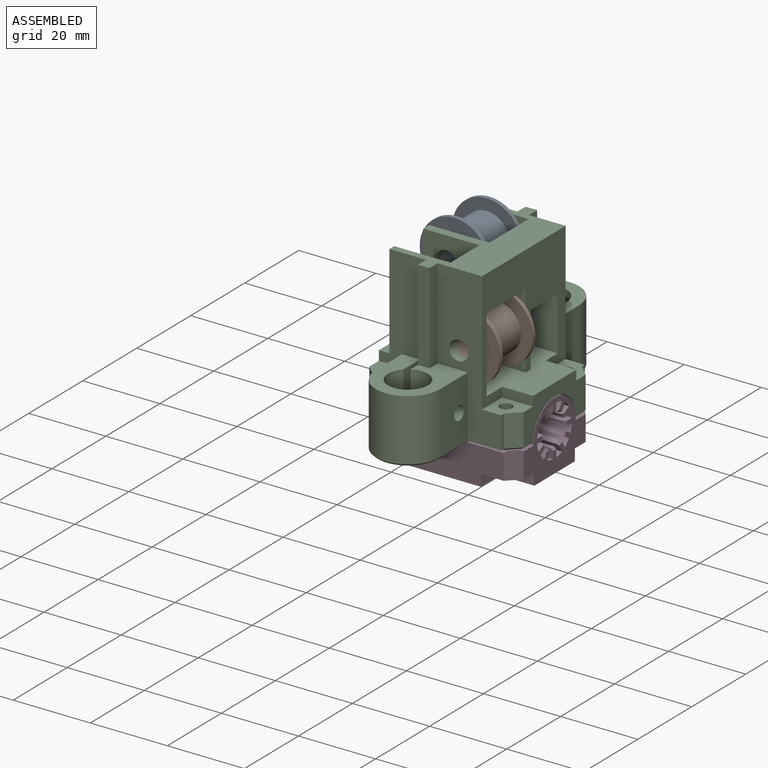
[diagram: assembled view]
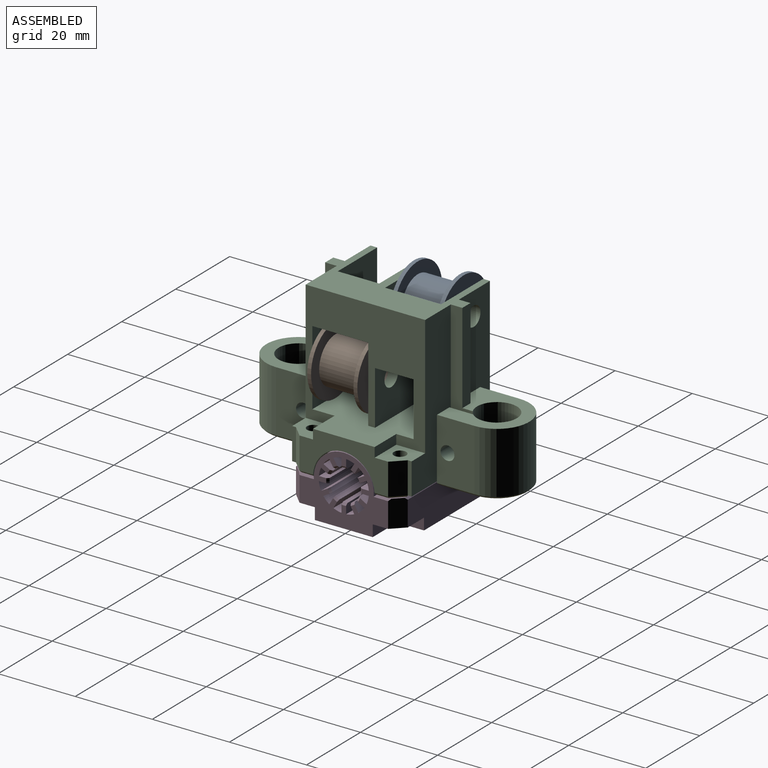
[diagram: assembled view, second angle]
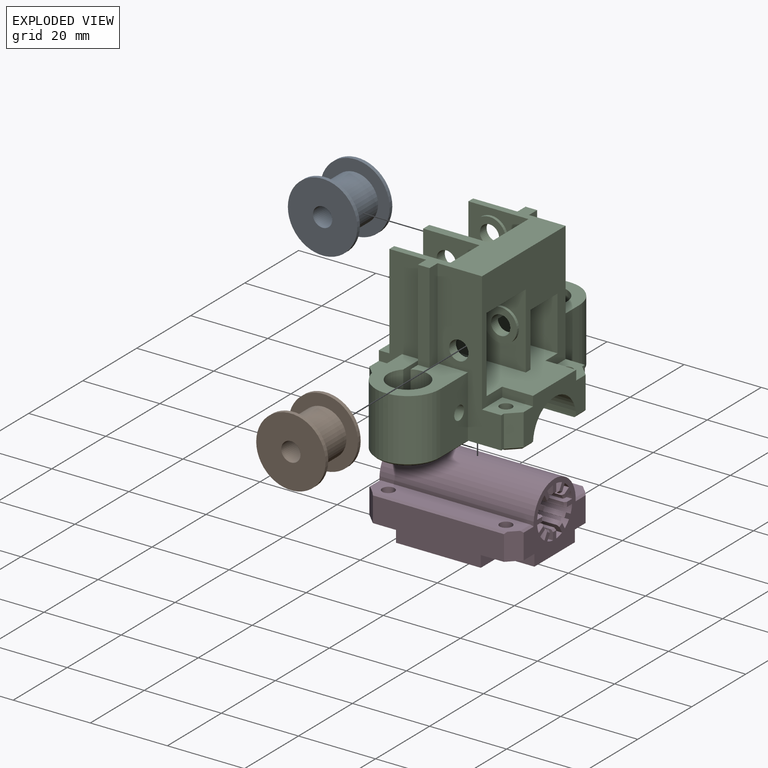
[diagram: exploded view]
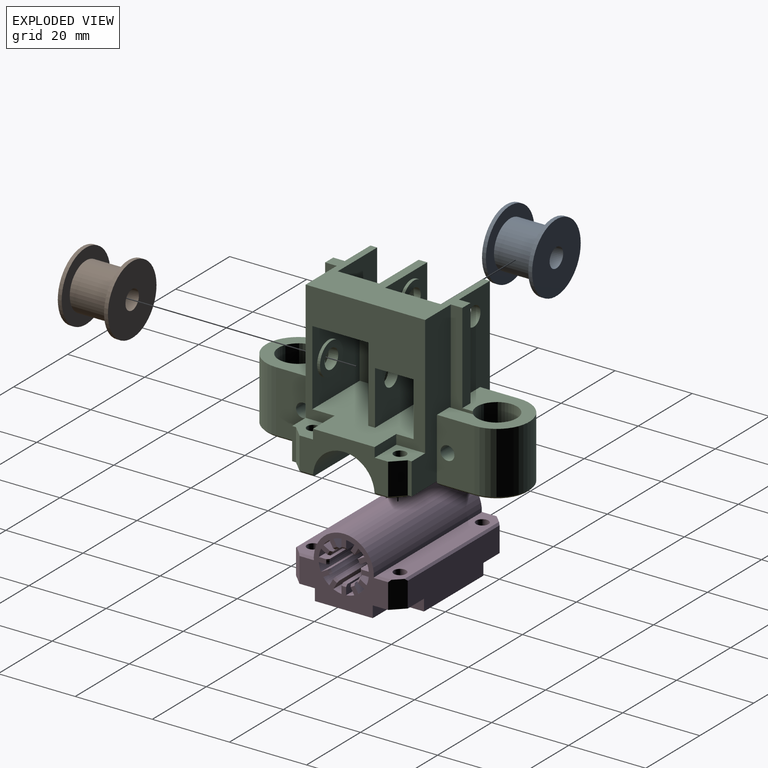
[diagram: exploded view, second angle]
ASSEMBLY  parts=4 mates=3
PART A: 8 faces, bbox 18x18x13 mm
  f0: cylinder r=9mm len=18mm, axis (0,0,-1), area 56.5mm2, adj f1,f2
  f1: plane 18x18mm, normal (0,0,1), area 141.4mm2, adj f0,f3
  f2: plane 18x18mm, normal (0,0,-1), area 234.8mm2, adj f0,f7
  f3: cylinder r=6mm len=12mm, axis (0,0,-1), area 414.7mm2, adj f1,f6
  f4: cylinder r=9mm len=18mm, axis (0,0,-1), area 56.5mm2, adj f5,f6
  f5: plane 18x18mm, normal (0,0,1), area 234.8mm2, adj f4,f7
  f6: plane 18x18mm, normal (0,0,-1), area 141.4mm2, adj f3,f4
  f7: cylinder r=2.5mm len=13mm, axis (0,0,1), area 204.2mm2, adj f2,f5
PART B: same geometry as A
PART C: 125 faces, bbox 40x68.2x40 mm
  f0: cone r=1.6mm half-angle=45deg, axis (0,0,-1), area 8.2mm2, adj f26,f53
  f1: cone r=1.6mm half-angle=45deg, axis (0,0,-1), area 8.2mm2, adj f54,f110
  f2: cone r=1.6mm half-angle=45deg, axis (0,0,-1), area 8.2mm2, adj f52,f110
  f3: cone r=1.6mm half-angle=45deg, axis (0,0,-1), area 8.2mm2, adj f26,f51
  f4: plane 11.74x0.5mm, normal (-0.71,0,-0.71), area 8.1mm2, adj f5,f46,f58,f75,f110
  f5: cone r=7.85mm half-angle=45deg, axis (0,0,1), area 18mm2, adj f4,f6,f60,f110
  f6: plane 9.74x0.5mm, normal (0.71,0,-0.71), area 6.7mm2, adj f5,f59,f73,f110
  f7: plane 9.75x0.5mm, normal (-0.71,0,-0.71), area 6.7mm2, adj f26,f55,f83,f115
  f8: plane 6.19x0.51mm, normal (0.71,0,-0.71), area 4.1mm2, adj f9,f26,f42,f83
  f9: cone r=5.17mm half-angle=45deg, axis (0,0,-1), area 22.6mm2, adj f8,f26,f50,f118
  f10: plane 3.52x0.5mm, normal (0.71,0,-0.71), area 2.4mm2, adj f21,f26,f48,f112
  f11: plane 3.52x0.5mm, normal (-0.71,0,-0.71), area 2.4mm2, adj f26,f43,f48,f116
  f12: plane 8x7.5mm, normal (0,0,1), area 44.5mm2, adj f19,f37,f43,f51,f64,f85,f108
  f13: plane 18.6x16.7mm, normal (0,0,1), area 177.5mm2, adj f15,f42,f50,f55,f56,f57,f84,f89
  f14: plane 6.18x0.51mm, normal (-0.71,0,-0.71), area 4.1mm2, adj f45,f73,f110,f111
  f15: plane 39.5x5.72mm, normal (-1,0,0), area 151.8mm2, adj f13,f50,f63,f92,f103,f108,f118
  f16: plane 10.75x9.25mm, normal (-1,0,0), area 99.4mm2, adj f61,f63,f67,f82
  f17: plane 15x0.5mm, normal (0,0.71,-0.71), area 10.4mm2, adj f27,f78,f110,f119
  f18: plane 10x8.4mm, normal (0,0,-1), area 84mm2, adj f22,f62,f65,f80
  f19: plane 8.25x3mm, normal (-0.71,-0.71,0), area 35mm2, adj f12,f43,f85,f116
  f20: plane 14.75x10mm, normal (0,0,-1), area 147.5mm2, adj f22,f35,f64,f80
  f21: plane 23x10.75mm, normal (1,0,0), area 137.2mm2, adj f10,f23,f25,f28,f32,f36,f38,f39
  f22: plane 24x14mm, normal (0,-1,0), area 262.2mm2, adj f18,f20,f23,f35,f64,f65,f70,f71
  f23: plane 40x26.25mm, normal (0,0,1), area 749.8mm2, adj f21,f22,f29,f34,f36,f37,f39,f43
  f24: plane 8x7.5mm, normal (0,0,1), area 44.5mm2, adj f29,f41,f43,f52,f64,f76,f107
  f25: plane 8.25x3mm, normal (0.71,-0.71,0), area 35mm2, adj f21,f28,f88,f112
  f26: plane 39x25.6mm, normal (0,0,-1), area 354.1mm2, adj f0,f3,f7,f8,f9,f10,f11,f48
  f27: plane 7.21x0.5mm, normal (0.71,0,-0.71), area 4.6mm2, adj f17,f30,f78,f110,f111
  f28: plane 8x7.5mm, normal (0,0,1), area 44.5mm2, adj f21,f25,f36,f53,f65,f88,f89
  f29: plane 8x2.5mm, normal (0,1,0), area 20mm2, adj f23,f24,f43,f64
  f30: plane 39.5x5.71mm, normal (1,0,0), area 151.6mm2, adj f27,f47,f49,f63,f79,f91,f105
  f31: plane 10.75x6.5mm, normal (0,0,1), area 69.9mm2, adj f34,f64,f67,f82
  f32: plane 8.25x3mm, normal (0.71,0.71,0), area 35mm2, adj f21,f44,f77,f119
  f33: plane 14.75x14.5mm, normal (0,0,1), area 201.8mm2, adj f34,f35,f64,f68,f69,f70,f72,f81
  f34: plane 16.5x14.5mm, normal (1,0,0), area 232.5mm2, adj f23,f31,f33,f66,f69,f81,f82
  f35: plane 10x3mm, normal (1,0,0), area 30mm2, adj f20,f22,f33,f80
  f36: plane 8x2.5mm, normal (0,-1,0), area 20mm2, adj f21,f23,f28,f65
  f37: plane 8x2.5mm, normal (0,-1,0), area 20mm2, adj f12,f23,f43,f64
  f38: plane 3.52x0.5mm, normal (0.71,0,-0.71), area 2.4mm2, adj f21,f48,f110,f119
  f39: plane 8x2.5mm, normal (0,1,0), area 20mm2, adj f21,f23,f44,f65
  f40: plane 3.52x0.5mm, normal (-0.71,0,-0.71), area 2.4mm2, adj f43,f48,f110,f120
  f41: plane 8.25x3mm, normal (-0.71,0.71,0), area 35mm2, adj f24,f43,f76,f120
  f42: plane 16x6.18mm, normal (1,0,0), area 88.7mm2, adj f8,f13,f50,f84,f123
  f43: plane 23x10.75mm, normal (-1,0,0), area 137.2mm2, adj f11,f12,f19,f23,f24,f29,f37,f40
  f44: plane 8x7.5mm, normal (0,0,1), area 44.5mm2, adj f21,f32,f39,f54,f65,f77,f79
  f45: plane 16x6.17mm, normal (-1,0,0), area 88.6mm2, adj f14,f47,f49,f74,f122
  f46: plane 9.15x0.5mm, normal (0,0.71,-0.71), area 6.2mm2, adj f4,f75,f110,f120
  f47: plane 18.59x16.7mm, normal (0,0,1), area 177.4mm2, adj f30,f45,f49,f58,f59,f60,f74,f104
  f48: cylinder r=8mm len=40mm, axis (-1,0,0), area 1004.8mm2, adj f10,f11,f21,f26,f38,f40,f43,f110
  f49: cylinder r=5.17mm len=16mm, axis (0,0,-1), area 494.9mm2, adj f30,f45,f47,f111
  f50: cylinder r=5.17mm len=16mm, axis (0,0,-1), area 494.9mm2, adj f9,f13,f15,f42
  f51: cylinder r=1.6mm len=8.25mm, axis (0,0,1), area 82.9mm2, adj f3,f12
  f52: cylinder r=1.6mm len=8.25mm, axis (0,0,1), area 82.9mm2, adj f2,f24
  f53: cylinder r=1.6mm len=8.25mm, axis (0,0,1), area 82.9mm2, adj f0,f28
  f54: cylinder r=1.6mm len=8.25mm, axis (0,0,1), area 82.9mm2, adj f1,f44
  f55: plane 16x9.75mm, normal (-1,0,0), area 145.8mm2, adj f7,f13,f56,f84,f123
  f56: cylinder r=8.35mm len=16.7mm, axis (0,0,1), area 419.7mm2, adj f13,f55,f57,f115
  f57: plane 16x10.25mm, normal (1,0,0), area 153.8mm2, adj f13,f56,f89,f92,f114
  f58: plane 16x10.24mm, normal (-1,0,0), area 153.6mm2, adj f4,f47,f60,f91,f107
  f59: plane 16x9.74mm, normal (1,0,0), area 145.6mm2, adj f6,f47,f60,f74,f122
  f60: cylinder r=8.35mm len=16.7mm, axis (0,0,1), area 419.7mm2, adj f5,f47,f58,f59
  f61: plane 14.5x9.4mm, normal (0,0,-1), area 134.8mm2, adj f16,f62,f65,f69,f81,f82,f106
  f62: plane 14.75x14.5mm, normal (-1,0,0), area 205.6mm2, adj f18,f61,f63,f69,f71,f72,f81,f109
  f63: plane 37x24mm, normal (0,0,1), area 378.9mm2, adj f15,f16,f30,f62,f64,f65,f67,f69
  f64: plane 31.25x31mm, normal (-1,0,0), area 464.2mm2, adj f12,f20,f22,f23,f24,f29,f31,f33
  f65: plane 31.25x31mm, normal (1,0,0), area 506mm2, adj f18,f22,f23,f28,f36,f39,f44,f61
  f66: plane 3.52x2.25mm, normal (0,0,-1), area 7.9mm2, adj f34,f67,f69,f106
  f67: plane 14.6x12.25mm, normal (0,-1,0), area 155.4mm2, adj f16,f31,f63,f64,f66,f90,f106
  f68: plane 2.5x0.36mm, normal (-1,0,0), area 0.9mm2, adj f33,f80,f101,f109
  f69: plane 16.75x15.6mm, normal (0,1,0), area 156.8mm2, adj f33,f34,f61,f62,f63,f64,f66,f93
  f70: plane 2x1.25mm, normal (-1,0,0), area 2.5mm2, adj f22,f33,f71,f72
  f71: plane 1.25x0.85mm, normal (0,0,1), area 1.1mm2, adj f22,f62,f70,f72
  f72: plane 16.75x15.6mm, normal (0,-1,0), area 202.9mm2, adj f33,f62,f63,f64,f70,f71,f95
  f73: plane 4.6x0.5mm, normal (0,-0.71,-0.71), area 2.9mm2, adj f6,f14,f74,f110
  f74: plane 16x4.6mm, normal (0,-1,0), area 73.6mm2, adj f45,f47,f59,f73
  f75: plane 8.65x1mm, normal (0,0,-1), area 8.6mm2, adj f4,f46,f76,f107
  f76: plane 8.25x1mm, normal (-1,0,0), area 8.2mm2, adj f24,f41,f75,f107
  f77: plane 8.25x1mm, normal (1,0,0), area 8.2mm2, adj f32,f44,f78,f79
  f78: plane 14.5x1mm, normal (0,0,-1), area 14.5mm2, adj f17,f27,f77,f79
  f79: plane 39.5x14.5mm, normal (0,1,0), area 416.5mm2, adj f30,f44,f63,f65,f77,f78
  f80: plane 24x14mm, normal (0,1,0), area 242.2mm2, adj f18,f20,f23,f35,f64,f65,f68,f97
  f81: plane 19.5x17.5mm, normal (0,-1,0), area 217.6mm2, adj f23,f33,f34,f61,f62,f65,f100,f109
  f82: plane 28.75x24mm, normal (0,1,0), area 439.1mm2, adj f16,f23,f31,f34,f61,f63,f64,f65
  f83: plane 4.6x0.5mm, normal (0,0.71,-0.71), area 2.9mm2, adj f7,f8,f26,f84
  f84: plane 16x4.6mm, normal (0,1,0), area 73.6mm2, adj f13,f42,f55,f83
  f85: plane 8.25x1mm, normal (-1,0,0), area 8.2mm2, adj f12,f19,f86,f108
  f86: plane 14.5x1mm, normal (0,0,-1), area 14.5mm2, adj f85,f108,f117,f118
  f87: plane 8.65x1mm, normal (0,0,-1), area 8.6mm2, adj f88,f89,f113,f114
  f88: plane 8.25x1mm, normal (1,0,0), area 8.2mm2, adj f25,f28,f87,f89
  f89: plane 39.5x16.5mm, normal (0,-1,0), area 350.3mm2, adj f13,f28,f57,f63,f65,f87,f88,f102
  f90: cylinder r=2.5mm len=5mm, axis (0,-1,0), area 47.1mm2, adj f67,f94
  f91: cylinder r=1.8mm len=10.85mm, axis (-1,0,0), area 122.7mm2, adj f30,f58
  f92: cylinder r=1.8mm len=10.85mm, axis (-1,0,0), area 122.7mm2, adj f15,f57
  f93: cylinder r=4.25mm len=8.5mm, axis (0,1,0), area 20mm2, adj f69,f94
  f94: plane 8.5x8.5mm, normal (0,1,0), area 37.1mm2, adj f90,f93
  f95: cylinder r=4.25mm len=8.5mm, axis (0,-1,0), area 20mm2, adj f72,f96
  f96: plane 8.5x8.5mm, normal (0,-1,0), area 37.1mm2, adj f95,f121
  f97: cylinder r=2.5mm len=5mm, axis (0,1,0), area 39.3mm2, adj f80,f101
  f98: cylinder r=4.25mm len=8.5mm, axis (0,1,0), area 20mm2, adj f82,f99
  f99: plane 8.5x8.5mm, normal (0,1,0), area 37.1mm2, adj f98,f124
  f100: cylinder r=4.25mm len=8.5mm, axis (0,-1,0), area 19.6mm2, adj f33,f81,f101,f109
  f101: plane 8.5x8.5mm, normal (0,-1,0), area 37mm2, adj f33,f68,f97,f100,f109
  f102: plane 23.5x3mm, normal (1,0,0), area 70.5mm2, adj f13,f63,f89,f103
  f103: plane 23.5x3mm, normal (0,-1,0), area 70.5mm2, adj f13,f15,f63,f102
  f104: plane 23.5x3mm, normal (-1,0,0), area 70.5mm2, adj f47,f63,f105,f107
  f105: plane 23.5x3mm, normal (0,1,0), area 70.5mm2, adj f30,f47,f63,f104
  f106: cylinder r=5mm len=4.58mm, axis (0,-1,0), area 13mm2, adj f61,f66,f67,f69
  f107: plane 39.5x16.5mm, normal (0,1,0), area 350.3mm2, adj f24,f47,f58,f63,f64,f75,f76,f104
  f108: plane 39.5x14.5mm, normal (0,-1,0), area 416.5mm2, adj f12,f15,f63,f64,f85,f86
  f109: cylinder r=2mm len=2.5mm, axis (0,-1,0), area 3.5mm2, adj f62,f68,f80,f81,f100,f101
  f110: plane 39x25.59mm, normal (0,0,-1), area 354mm2, adj f1,f2,f4,f5,f6,f14,f17,f27
  f111: cone r=5.17mm half-angle=45deg, axis (0,0,-1), area 22.6mm2, adj f14,f27,f49,f110
  f112: plane 3.21x3.21mm, normal (0.5,-0.5,-0.71), area 2.9mm2, adj f10,f25,f26,f113
  f113: plane 9.15x0.5mm, normal (0,-0.71,-0.71), area 6.2mm2, adj f26,f87,f112,f114
  f114: plane 11.75x0.5mm, normal (0.71,0,-0.71), area 8.1mm2, adj f26,f57,f87,f113,f115
  f115: cone r=7.85mm half-angle=45deg, axis (0,0,1), area 18mm2, adj f7,f26,f56,f114
  f116: plane 3.21x3.21mm, normal (-0.5,-0.5,-0.71), area 2.9mm2, adj f11,f19,f26,f117
  f117: plane 15x0.5mm, normal (0,-0.71,-0.71), area 10.4mm2, adj f26,f86,f116,f118
  f118: plane 7.22x0.5mm, normal (-0.71,0,-0.71), area 4.6mm2, adj f9,f15,f26,f86,f117
  f119: plane 3.21x3.21mm, normal (0.5,0.5,-0.71), area 2.9mm2, adj f17,f32,f38,f110
  f120: plane 3.21x3.21mm, normal (-0.5,0.5,-0.71), area 2.9mm2, adj f40,f41,f46,f110
  f121: cylinder r=2.5mm len=5mm, axis (0,-1,0), area 39.3mm2, adj f96,f107
  f122: cylinder r=1.8mm len=4.6mm, axis (-1,0,0), area 52mm2, adj f45,f59
  f123: cylinder r=1.8mm len=4.6mm, axis (-1,0,0), area 52mm2, adj f42,f55
  f124: cylinder r=2.5mm len=5mm, axis (0,1,0), area 39.3mm2, adj f89,f99
PART D: 176 faces, bbox 17.8x29x40 mm
  f0: plane 40x0.31mm, normal (0.66,-0.75,0), area 16.3mm2, adj f1,f6,f100,f101
  f1: plane 40x0.29mm, normal (0.71,-0.71,0), area 16.3mm2, adj f0,f2,f100,f101
  f2: plane 40x0.31mm, normal (0.75,-0.66,0), area 16.3mm2, adj f1,f3,f100,f101
  f3: plane 40x0.32mm, normal (0.79,-0.61,0), area 16.3mm2, adj f2,f4,f100,f101
  f4: plane 40x0.07mm, normal (0.83,-0.56,0), area 3.2mm2, adj f3,f5,f100,f101
  f5: plane 40x2.12mm, normal (0.5,0.87,0), area 97.3mm2, adj f4,f100,f101,f110,f121,f138
  f6: plane 40x0.32mm, normal (0.61,-0.79,0), area 16.3mm2, adj f0,f7,f100,f101
  f7: plane 40x0.07mm, normal (0.56,-0.83,0), area 3.2mm2, adj f6,f8,f100,f101
  f8: plane 40x2.12mm, normal (-0.87,-0.5,0), area 97.3mm2, adj f7,f100,f101,f111,f126,f137
  f9: plane 40x2.12mm, normal (-0.5,-0.87,0), area 97.4mm2, adj f10,f100,f101,f110,f121,f138
  f10: plane 40x0.32mm, normal (0.92,-0.4,0), area 14.1mm2, adj f9,f11,f100,f101
  f11: plane 40x0.38mm, normal (0.94,-0.34,0), area 16.3mm2, adj f10,f12,f100,f101
  f12: plane 40x0.39mm, normal (0.96,-0.28,0), area 16.3mm2, adj f11,f13,f100,f101
  f13: plane 40x0.4mm, normal (0.98,-0.22,0), area 16.3mm2, adj f12,f14,f100,f101
  f14: plane 40x0.4mm, normal (0.99,-0.16,0), area 16.3mm2, adj f13,f15,f100,f101
  f15: plane 40x0.21mm, normal (1,-0.09,0), area 8.6mm2, adj f14,f16,f100,f101
  f16: plane 40x2.44mm, normal (0,1,0), area 97.3mm2, adj f15,f100,f101,f109,f120,f132
  f17: plane 40x2.12mm, normal (0.87,0.5,0), area 97.4mm2, adj f18,f100,f101,f111,f126,f137
  f18: plane 40x0.32mm, normal (0.4,-0.92,0), area 14.1mm2, adj f17,f19,f100,f101
  f19: plane 40x0.38mm, normal (0.34,-0.94,0), area 16.3mm2, adj f18,f20,f100,f101
  f20: plane 40x0.39mm, normal (0.28,-0.96,0), area 16.3mm2, adj f19,f21,f100,f101
  f21: plane 40x0.4mm, normal (0.22,-0.98,0), area 16.3mm2, adj f20,f22,f100,f101
  f22: plane 40x0.4mm, normal (0.16,-0.99,0), area 16.3mm2, adj f21,f23,f100,f101
  f23: plane 40x0.21mm, normal (0.09,-1,0), area 8.6mm2, adj f22,f24,f100,f101
  f24: plane 40x2.44mm, normal (-1,0,0), area 97.3mm2, adj f23,f100,f101,f112,f125,f136
  f25: plane 40x2.44mm, normal (1,0,0), area 97.3mm2, adj f26,f100,f101,f112,f125,f136
  f26: plane 40x0.21mm, normal (-0.09,-1,0), area 8.6mm2, adj f25,f27,f100,f101
  f27: plane 40x0.4mm, normal (-0.16,-0.99,0), area 16.3mm2, adj f26,f28,f100,f101
  f28: plane 40x0.4mm, normal (-0.22,-0.98,0), area 16.3mm2, adj f27,f29,f100,f101
  f29: plane 40x0.39mm, normal (-0.28,-0.96,0), area 16.3mm2, adj f28,f30,f100,f101
  f30: plane 40x0.38mm, normal (-0.34,-0.94,0), area 16.3mm2, adj f29,f31,f100,f101
  f31: plane 40x0.32mm, normal (-0.4,-0.92,0), area 14.1mm2, adj f30,f32,f100,f101
  f32: plane 40x2.12mm, normal (-0.87,0.5,0), area 97.4mm2, adj f31,f100,f101,f113,f124,f135
  f33: plane 40x2.12mm, normal (0.87,-0.5,0), area 97.3mm2, adj f34,f100,f101,f113,f124,f135
  f34: plane 40x0.07mm, normal (-0.56,-0.83,0), area 3.2mm2, adj f33,f35,f100,f101
  f35: plane 40x0.32mm, normal (-0.61,-0.79,0), area 16.3mm2, adj f34,f36,f100,f101
  f36: plane 40x0.31mm, normal (-0.66,-0.75,0), area 16.3mm2, adj f35,f37,f100,f101
  f37: plane 40x0.29mm, normal (-0.71,-0.71,0), area 16.3mm2, adj f36,f38,f100,f101
  f38: plane 40x0.31mm, normal (-0.75,-0.66,0), area 16.3mm2, adj f37,f39,f100,f101
  f39: plane 40x0.32mm, normal (-0.79,-0.61,0), area 16.3mm2, adj f38,f40,f100,f101
  f40: plane 40x0.07mm, normal (-0.83,-0.56,0), area 3.2mm2, adj f39,f41,f100,f101
  f41: plane 40x2.12mm, normal (-0.5,0.87,0), area 97.3mm2, adj f40,f100,f101,f114,f123,f134
  f42: plane 40x2.12mm, normal (0.5,-0.87,0), area 97.4mm2, adj f43,f100,f101,f114,f123,f134
  f43: plane 40x0.32mm, normal (-0.92,-0.4,0), area 14.1mm2, adj f42,f44,f100,f101
  f44: plane 40x0.38mm, normal (-0.94,-0.34,0), area 16.3mm2, adj f43,f45,f100,f101
  f45: plane 40x0.39mm, normal (-0.96,-0.28,0), area 16.3mm2, adj f44,f46,f100,f101
  f46: plane 40x0.4mm, normal (-0.98,-0.22,0), area 16.3mm2, adj f45,f47,f100,f101
  f47: plane 40x0.4mm, normal (-0.99,-0.16,0), area 16.3mm2, adj f46,f48,f100,f101
  f48: plane 40x0.21mm, normal (-1,-0.09,0), area 8.6mm2, adj f47,f49,f100,f101
  f49: plane 40x2.44mm, normal (0,1,0), area 97.3mm2, adj f48,f100,f101,f103,f122,f133
  f50: plane 40x2.44mm, normal (0,-1,0), area 97.3mm2, adj f51,f100,f101,f109,f120,f132
  f51: plane 40x0.21mm, normal (1,0.09,0), area 8.6mm2, adj f50,f52,f100,f101
  f52: plane 40x0.4mm, normal (0.99,0.16,0), area 16.3mm2, adj f51,f53,f100,f101
  f53: plane 40x0.4mm, normal (0.98,0.22,0), area 16.3mm2, adj f52,f54,f100,f101
  f54: plane 40x0.39mm, normal (0.96,0.28,0), area 16.3mm2, adj f53,f55,f100,f101
  f55: plane 40x0.38mm, normal (0.94,0.34,0), area 16.3mm2, adj f54,f56,f100,f101
  f56: plane 40x0.32mm, normal (0.92,0.4,0), area 14.1mm2, adj f55,f57,f100,f101
  f57: plane 40x2.12mm, normal (-0.5,0.87,0), area 97.4mm2, adj f56,f100,f101,f108,f119,f131
  f58: plane 40x2.12mm, normal (0.5,-0.87,0), area 97.3mm2, adj f59,f100,f101,f108,f119,f131
  f59: plane 40x0.07mm, normal (0.83,0.56,0), area 3.2mm2, adj f58,f60,f100,f101
  f60: plane 40x0.32mm, normal (0.79,0.61,0), area 16.3mm2, adj f59,f61,f100,f101
  f61: plane 40x0.31mm, normal (0.75,0.66,0), area 16.3mm2, adj f60,f62,f100,f101
  f62: plane 40x0.29mm, normal (0.71,0.71,0), area 16.3mm2, adj f61,f91,f100,f101
  f63: plane 40x2.44mm, normal (-1,0,0), area 97.3mm2, adj f81,f100,f101,f106,f117,f129
  f64: plane 40x2.44mm, normal (1,0,0), area 97.3mm2, adj f65,f100,f101,f106,f117,f129
  f65: plane 40x0.21mm, normal (-0.09,1,0), area 8.6mm2, adj f64,f80,f100,f101
  f66: plane 40x2.12mm, normal (-0.5,-0.87,0), area 97.3mm2, adj f67,f100,f101,f104,f115,f127
  f67: plane 40x0.07mm, normal (-0.83,0.56,0), area 3.2mm2, adj f66,f68,f100,f101
  f68: plane 40x0.32mm, normal (-0.79,0.61,0), area 16.3mm2, adj f67,f69,f100,f101
  f69: plane 40x0.31mm, normal (-0.75,0.66,0), area 16.3mm2, adj f68,f70,f100,f101
  f70: plane 40x0.29mm, normal (-0.71,0.71,0), area 16.3mm2, adj f69,f71,f100,f101
  f71: plane 40x0.31mm, normal (-0.66,0.75,0), area 16.3mm2, adj f70,f72,f100,f101
  f72: plane 40x0.32mm, normal (-0.61,0.79,0), area 16.3mm2, adj f71,f73,f100,f101
  f73: plane 40x0.07mm, normal (-0.56,0.83,0), area 3.2mm2, adj f72,f74,f100,f101
  f74: plane 40x2.12mm, normal (0.87,0.5,0), area 97.3mm2, adj f73,f100,f101,f105,f116,f128
  f75: plane 40x2.12mm, normal (-0.87,-0.5,0), area 97.4mm2, adj f76,f100,f101,f105,f116,f128
  f76: plane 40x0.32mm, normal (-0.4,0.92,0), area 14.1mm2, adj f75,f77,f100,f101
  f77: plane 40x0.38mm, normal (-0.34,0.94,0), area 16.3mm2, adj f76,f78,f100,f101
  f78: plane 40x0.39mm, normal (-0.28,0.96,0), area 16.3mm2, adj f77,f79,f100,f101
  f79: plane 40x0.4mm, normal (-0.22,0.98,0), area 16.3mm2, adj f78,f80,f100,f101
  f80: plane 40x0.4mm, normal (-0.16,0.99,0), area 16.3mm2, adj f65,f79,f100,f101
  f81: plane 40x0.21mm, normal (0.09,1,0), area 8.6mm2, adj f63,f82,f100,f101
  f82: plane 40x0.4mm, normal (0.16,0.99,0), area 16.3mm2, adj f81,f83,f100,f101
  f83: plane 40x0.4mm, normal (0.22,0.98,0), area 16.3mm2, adj f82,f84,f100,f101
  f84: plane 40x0.39mm, normal (0.28,0.96,0), area 16.3mm2, adj f83,f85,f100,f101
  f85: plane 40x0.38mm, normal (0.34,0.94,0), area 16.3mm2, adj f84,f86,f100,f101
  f86: plane 40x0.32mm, normal (0.4,0.92,0), area 14.1mm2, adj f85,f87,f100,f101
  f87: plane 40x2.12mm, normal (0.87,-0.5,0), area 97.4mm2, adj f86,f100,f101,f107,f118,f130
  f88: plane 40x2.12mm, normal (-0.87,0.5,0), area 97.3mm2, adj f89,f100,f101,f107,f118,f130
  f89: plane 40x0.07mm, normal (0.56,0.83,0), area 3.2mm2, adj f88,f90,f100,f101
  f90: plane 40x0.32mm, normal (0.61,0.79,0), area 16.3mm2, adj f89,f91,f100,f101
  f91: plane 40x0.31mm, normal (0.66,0.75,0), area 16.3mm2, adj f62,f90,f100,f101
  f92: plane 40x2.44mm, normal (0,-1,0), area 97.3mm2, adj f93,f100,f101,f103,f122,f133
  f93: plane 40x0.21mm, normal (-1,0.09,0), area 8.6mm2, adj f92,f94,f100,f101
  f94: plane 40x0.4mm, normal (-0.99,0.16,0), area 16.3mm2, adj f93,f95,f100,f101
  f95: plane 40x0.4mm, normal (-0.98,0.22,0), area 16.3mm2, adj f94,f96,f100,f101
  f96: plane 40x0.39mm, normal (-0.96,0.28,0), area 16.3mm2, adj f95,f97,f100,f101
  f97: plane 40x0.38mm, normal (-0.94,0.34,0), area 16.3mm2, adj f96,f98,f100,f101
  f98: plane 40x0.32mm, normal (-0.92,0.4,0), area 14.1mm2, adj f97,f99,f100,f101
  f99: plane 40x2.12mm, normal (0.5,0.87,0), area 97.4mm2, adj f98,f100,f101,f104,f115,f127
  f100: plane 23x17.8mm, normal (0,0,1), area 193mm2, adj f0,f1,f2,f3,f4,f5,f6,f7
  f101: plane 23x17.8mm, normal (0,0,-1), area 193mm2, adj f0,f1,f2,f3,f4,f5,f6,f7
  f102: cylinder r=7.8mm len=40mm, axis (0,0,1), area 1014mm2, adj f100,f101,f139,f140,f143,f145,f149,f152
  f103: cylinder r=4.07mm len=39mm, axis (0,0,1), area 47mm2, adj f49,f92,f122,f133
  f104: cylinder r=4.07mm len=39mm, axis (0,0,1), area 47mm2, adj f66,f99,f115,f127
  f105: cylinder r=4.07mm len=39mm, axis (0,0,1), area 47mm2, adj f74,f75,f116,f128
  f106: cylinder r=4.07mm len=39mm, axis (0,0,1), area 47mm2, adj f63,f64,f117,f129
  f107: cylinder r=4.07mm len=39mm, axis (0,0,1), area 47mm2, adj f87,f88,f118,f130
  f108: cylinder r=4.07mm len=39mm, axis (0,0,1), area 47mm2, adj f57,f58,f119,f131
  f109: cylinder r=4.07mm len=39mm, axis (0,0,1), area 47mm2, adj f16,f50,f120,f132
  f110: cylinder r=4.07mm len=39mm, axis (0,0,1), area 47mm2, adj f5,f9,f121,f138
  f111: cylinder r=4.07mm len=39mm, axis (0,0,1), area 47mm2, adj f8,f17,f126,f137
  f112: cylinder r=4.07mm len=39mm, axis (0,0,1), area 47mm2, adj f24,f25,f125,f136
  f113: cylinder r=4.07mm len=39mm, axis (0,0,1), area 47mm2, adj f32,f33,f124,f135
  f114: cylinder r=4.07mm len=39mm, axis (0,0,1), area 47mm2, adj f41,f42,f123,f134
  f115: cone r=4.58mm half-angle=45deg, axis (0,0,-1), area 0.9mm2, adj f66,f99,f101,f104
  f116: cone r=4.58mm half-angle=45deg, axis (0,0,-1), area 0.9mm2, adj f74,f75,f101,f105
  f117: cone r=4.58mm half-angle=45deg, axis (0,0,-1), area 0.9mm2, adj f63,f64,f101,f106
  f118: cone r=4.58mm half-angle=45deg, axis (0,0,-1), area 0.9mm2, adj f87,f88,f101,f107
  f119: cone r=4.58mm half-angle=45deg, axis (0,0,-1), area 0.9mm2, adj f57,f58,f101,f108
  f120: cone r=4.58mm half-angle=45deg, axis (0,0,-1), area 0.9mm2, adj f16,f50,f101,f109
  f121: cone r=4.58mm half-angle=45deg, axis (0,0,-1), area 0.9mm2, adj f5,f9,f101,f110
  f122: cone r=4.58mm half-angle=45deg, axis (0,0,-1), area 0.9mm2, adj f49,f92,f101,f103
  f123: cone r=4.58mm half-angle=45deg, axis (0,0,-1), area 0.9mm2, adj f41,f42,f101,f114
  f124: cone r=4.58mm half-angle=45deg, axis (0,0,-1), area 0.9mm2, adj f32,f33,f101,f113
  f125: cone r=4.58mm half-angle=45deg, axis (0,0,-1), area 0.9mm2, adj f24,f25,f101,f112
  f126: cone r=4.58mm half-angle=45deg, axis (0,0,-1), area 0.9mm2, adj f8,f17,f101,f111
  f127: cone r=4.07mm half-angle=45deg, axis (0,0,1), area 0.9mm2, adj f66,f99,f100,f104
  f128: cone r=4.07mm half-angle=45deg, axis (0,0,1), area 0.9mm2, adj f74,f75,f100,f105
  f129: cone r=4.07mm half-angle=45deg, axis (0,0,1), area 0.9mm2, adj f63,f64,f100,f106
  f130: cone r=4.07mm half-angle=45deg, axis (0,0,1), area 0.9mm2, adj f87,f88,f100,f107
  f131: cone r=4.07mm half-angle=45deg, axis (0,0,1), area 0.9mm2, adj f57,f58,f100,f108
  f132: cone r=4.07mm half-angle=45deg, axis (0,0,1), area 0.9mm2, adj f16,f50,f100,f109
  f133: cone r=4.07mm half-angle=45deg, axis (0,0,1), area 0.9mm2, adj f49,f92,f100,f103
  f134: cone r=4.07mm half-angle=45deg, axis (0,0,1), area 0.9mm2, adj f41,f42,f100,f114
  f135: cone r=4.07mm half-angle=45deg, axis (0,0,1), area 0.9mm2, adj f32,f33,f100,f113
  f136: cone r=4.07mm half-angle=45deg, axis (0,0,1), area 0.9mm2, adj f24,f25,f100,f112
  f137: cone r=4.07mm half-angle=45deg, axis (0,0,1), area 0.9mm2, adj f8,f17,f100,f111
  f138: cone r=4.07mm half-angle=45deg, axis (0,0,1), area 0.9mm2, adj f5,f9,f100,f110
  f139: plane 0.44x0.42mm, normal (0.71,0,-0.71), area 0mm2, adj f102,f140,f152
  f140: plane 4.22x0.5mm, normal (0.71,0,-0.71), area 2.7mm2, adj f101,f102,f139,f150,f164
  f141: plane 9x7mm, normal (-1,0,0), area 50.5mm2, adj f100,f151,f162,f166,f170,f173
  f142: plane 9x7mm, normal (-1,0,0), area 50.5mm2, adj f101,f146,f147,f150,f166,f174
  f143: plane 39.85x0.44mm, normal (0.72,-0.7,0), area 23.9mm2, adj f102,f145,f159,f171
  f144: plane 9x3mm, normal (0,1,0), area 27mm2, adj f101,f160,f163,f169
  f145: plane 0.44x0.42mm, normal (0.71,0,0.71), area 0mm2, adj f102,f143,f158
  f146: plane 9x3mm, normal (0,-1,0), area 27mm2, adj f101,f142,f147,f169
  f147: plane 7x3mm, normal (0,0,-1), area 21mm2, adj f142,f146,f166,f169
  f148: plane 34x9.5mm, normal (0,1,0), area 287mm2, adj f154,f155,f160,f163,f165,f167,f168,f169
  f149: plane 4.22x0.5mm, normal (0.71,0,-0.71), area 2.7mm2, adj f101,f102,f159,f167,f171
  f150: plane 7x3mm, normal (0,-0.71,-0.71), area 29.3mm2, adj f101,f140,f142,f153,f164,f166
  f151: plane 7x3mm, normal (0,0,1), area 21mm2, adj f141,f162,f166,f169
  f152: plane 39.85x0.44mm, normal (0.72,0.7,0), area 23.9mm2, adj f102,f139,f157,f164
  f153: plane 35x0.5mm, normal (0.71,-0.71,0), area 24.4mm2, adj f150,f164,f166,f170
  f154: plane 35x0.5mm, normal (0.71,0.71,0), area 24.4mm2, adj f148,f155,f167,f171
  f155: plane 7x3mm, normal (0,0.71,0.71), area 29.3mm2, adj f100,f148,f154,f158,f165,f171
  f156: plane 4.22x0.5mm, normal (0.71,0,0.71), area 2.7mm2, adj f100,f102,f157,f164,f170
  f157: plane 0.44x0.42mm, normal (0.71,0,0.71), area 0mm2, adj f102,f152,f156
  f158: plane 4.22x0.5mm, normal (0.71,0,0.71), area 2.7mm2, adj f100,f102,f145,f155,f171
  f159: plane 0.44x0.42mm, normal (0.71,0,-0.71), area 0mm2, adj f102,f143,f149
  f160: plane 9x7mm, normal (-1,0,0), area 50.5mm2, adj f101,f144,f148,f163,f167,f175
  f161: plane 9x3mm, normal (0,1,0), area 27mm2, adj f100,f165,f168,f169
  f162: plane 9x3mm, normal (0,-1,0), area 27mm2, adj f100,f141,f151,f169
  f163: plane 7x3mm, normal (0,0,-1), area 21mm2, adj f144,f148,f160,f169
  f164: plane 39x5.78mm, normal (1,0,0), area 205.1mm2, adj f140,f150,f152,f153,f156,f170,f173,f174
  f165: plane 9x7mm, normal (-1,0,0), area 50.5mm2, adj f100,f148,f155,f161,f168,f172
  f166: plane 34x9.5mm, normal (0,-1,0), area 287mm2, adj f141,f142,f147,f150,f151,f153,f169,f170
  f167: plane 7x3mm, normal (0,0.71,-0.71), area 29.3mm2, adj f101,f148,f149,f154,f160,f171
  f168: plane 7x3mm, normal (0,0,1), area 21mm2, adj f148,f161,f165,f169
  f169: plane 40x29mm, normal (-1,0,0), area 908mm2, adj f100,f101,f144,f146,f147,f148,f151,f161
  f170: plane 7x3mm, normal (0,-0.71,0.71), area 29.3mm2, adj f100,f141,f153,f156,f164,f166
  f171: plane 39x5.78mm, normal (1,0,0), area 205.1mm2, adj f143,f149,f154,f155,f158,f167,f172,f175
  f172: cylinder r=1.6mm len=7mm, axis (-1,0,0), area 70.4mm2, adj f165,f171
  f173: cylinder r=1.6mm len=7mm, axis (-1,0,0), area 70.4mm2, adj f141,f164
  f174: cylinder r=1.6mm len=7mm, axis (-1,0,0), area 70.4mm2, adj f142,f164
  f175: cylinder r=1.6mm len=7mm, axis (-1,0,0), area 70.4mm2, adj f160,f171
PLACE A rot(axis=(-1,0,0),90deg) t=(-32,3.47,8.12)mm
PLACE B rot(axis=(-1,0,0),90deg) t=(-20,-9.53,-4.87)mm
PLACE C t=(-26,3.47,-23.63)mm
PLACE D rot(axis=(0,-1,0),90deg) t=(-5.99,3.47,-25.88)mm
MATE fastened D.f172 <-> C.f2  axis (0,0,1) through (-41.24,14.72,-25.88)mm
MATE fastened A.f4 <-> C.f90  axis (0,1,0) through (-32,16.47,8.12)mm
MATE fastened B.f4 <-> C.f97  axis (0,1,0) through (-20,3.47,-4.87)mm
